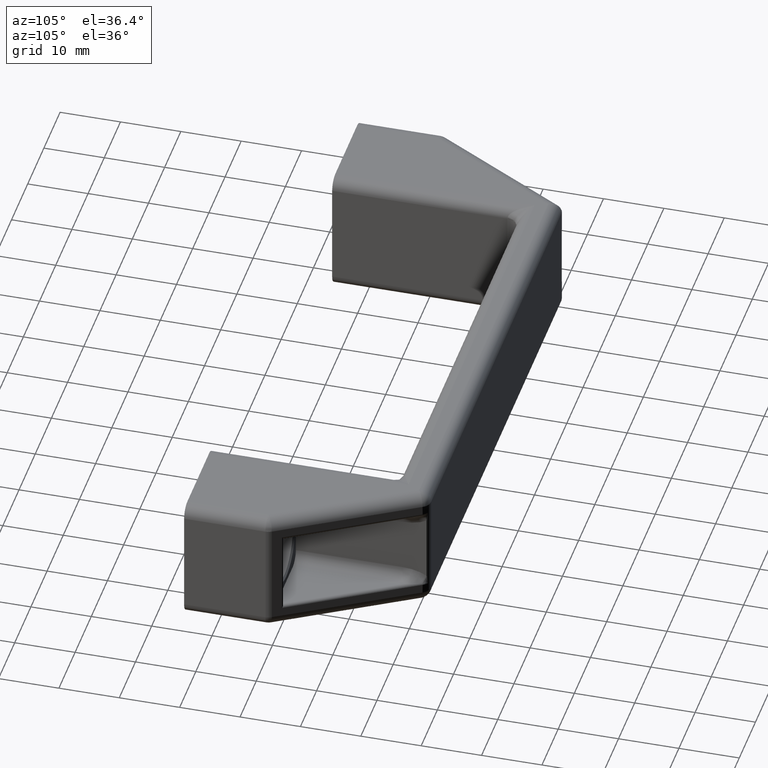
[diagram: clean part render]
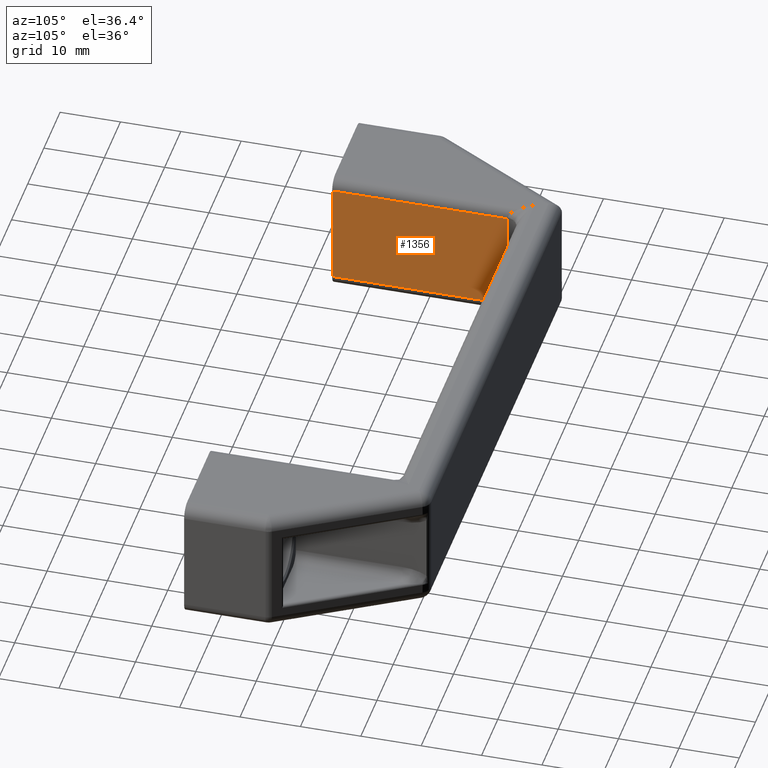
[diagram: same view with one face highlighted and labeled with its STEP entity id]
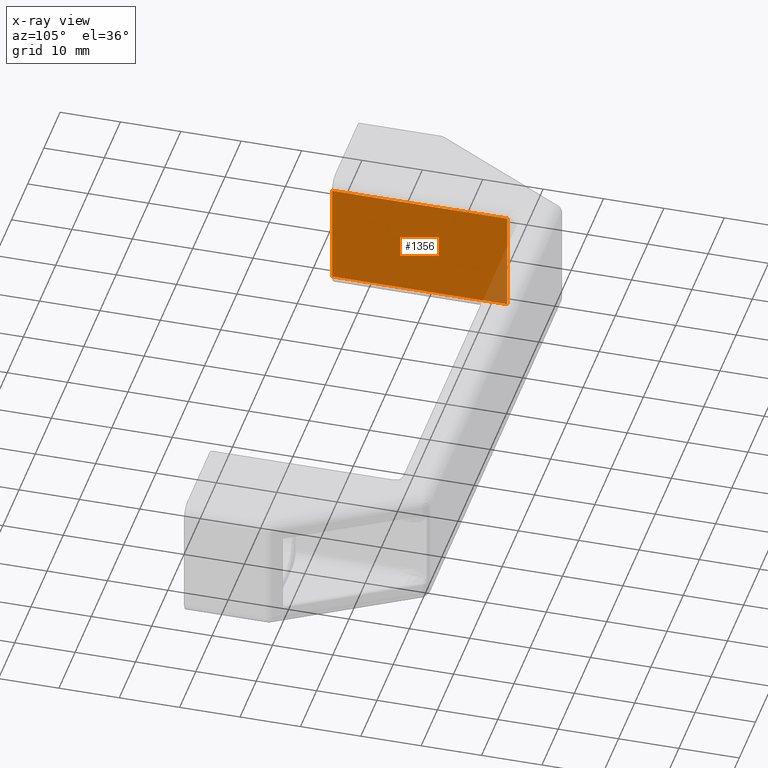
[diagram: x-ray of the same camera — body ghosted, the highlighted face saturated]
A machine part, auxiliary view. The second image highlights one B-rep face of the part: STEP entity #1356.
The next image is the same camera in x-ray: the body ghosted, the highlighted face saturated — about 5% of this face is hidden behind the body in this view.
In plain terms, the highlighted planar face has unit normal (1, 0, 0).
Its self-contained STEP definition (entity closure, byte-faithful):
#48=PLANE('',#1489);
#111=LINE('',#2350,#200);
#124=LINE('',#2480,#213);
#126=LINE('',#2558,#215);
#128=LINE('',#2561,#217);
#200=VECTOR('',#1683,17.);
#213=VECTOR('',#1752,17.);
#215=VECTOR('',#1764,29.);
#217=VECTOR('',#1768,29.);
#343=FACE_OUTER_BOUND('',#446,.T.);
#446=EDGE_LOOP('',(#1050,#1051,#1052,#1053));
#628=VERTEX_POINT('',#2336);
#634=VERTEX_POINT('',#2348);
#657=VERTEX_POINT('',#2476);
#658=VERTEX_POINT('',#2478);
#766=EDGE_CURVE('',#634,#628,#111,.T.);
#797=EDGE_CURVE('',#658,#657,#124,.T.);
#802=EDGE_CURVE('',#657,#634,#126,.T.);
#804=EDGE_CURVE('',#628,#658,#128,.T.);
#1050=ORIENTED_EDGE('',*,*,#797,.F.);
#1051=ORIENTED_EDGE('',*,*,#804,.F.);
#1052=ORIENTED_EDGE('',*,*,#766,.F.);
#1053=ORIENTED_EDGE('',*,*,#802,.F.);
#1356=ADVANCED_FACE('',(#343),#48,.T.);
#1489=AXIS2_PLACEMENT_3D('',#2560,#1766,#1767);
#1683=DIRECTION('',(0.,0.,1.));
#1752=DIRECTION('',(0.,0.,-1.));
#1764=DIRECTION('',(1.43254583822601E-16,-1.,0.));
#1766=DIRECTION('center_axis',(1.,1.43254583822601E-16,0.));
#1767=DIRECTION('ref_axis',(0.,0.,-1.));
#1768=DIRECTION('',(-1.43254583822601E-16,1.,0.));
#2336=CARTESIAN_POINT('',(-13.5977651009013,-25.1750464309019,19.));
#2348=CARTESIAN_POINT('',(-13.5977651009013,-25.1750464309019,2.));
#2350=CARTESIAN_POINT('',(-13.5977651009013,-25.1750464309019,0.));
#2476=CARTESIAN_POINT('',(-13.5977651009013,3.82495356909814,2.));
#2478=CARTESIAN_POINT('',(-13.5977651009013,3.82495356909814,19.));
#2480=CARTESIAN_POINT('',(-13.5977651009013,3.82495356909814,0.));
#2558=CARTESIAN_POINT('',(-13.5977651009013,2.05727251275731,2.));
#2560=CARTESIAN_POINT('Origin',(-13.5977651009013,5.82495356909814,0.));
#2561=CARTESIAN_POINT('',(-13.5977651009013,2.05727251275731,19.));